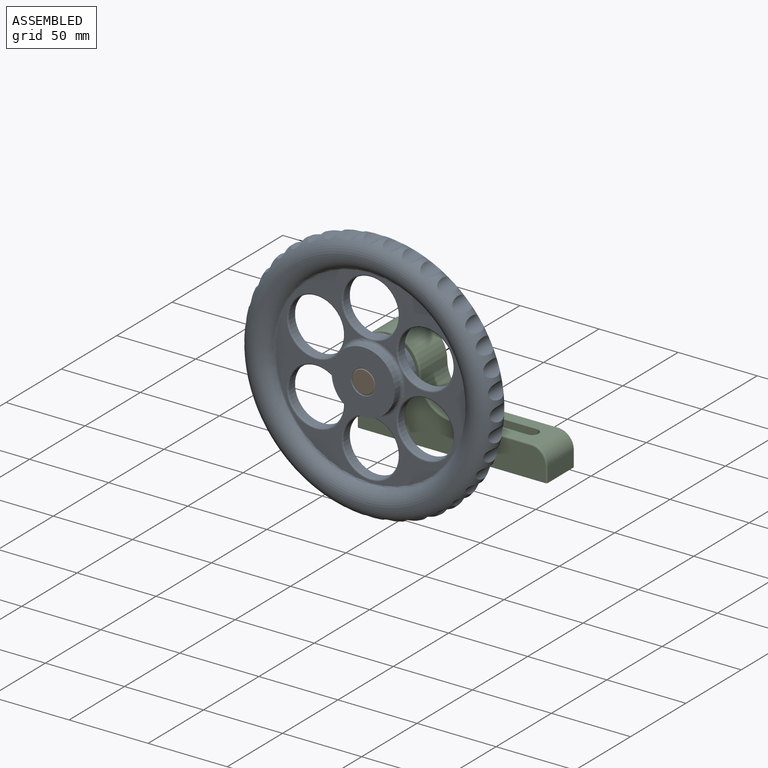
[diagram: assembled view]
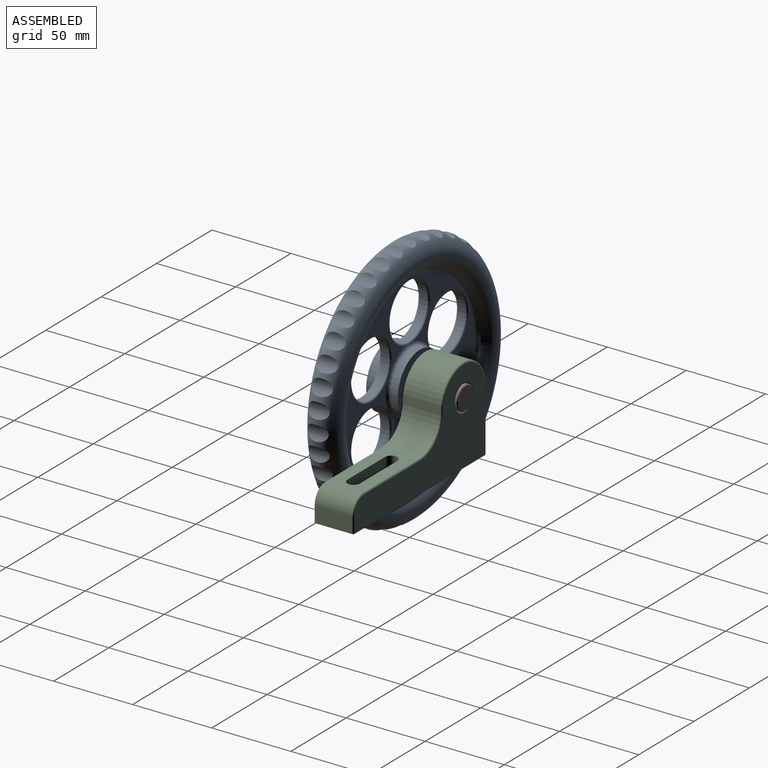
[diagram: assembled view, second angle]
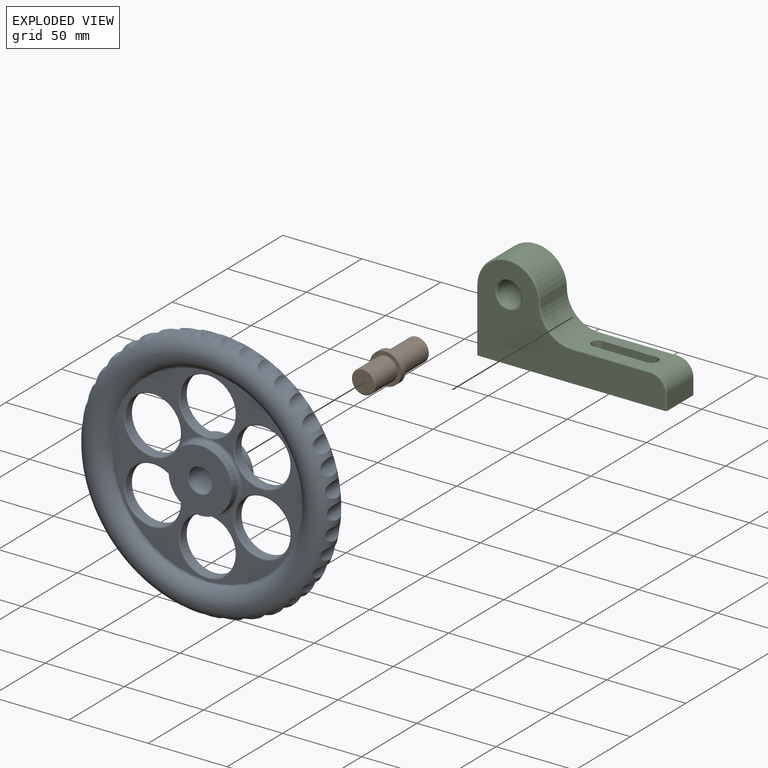
[diagram: exploded view]
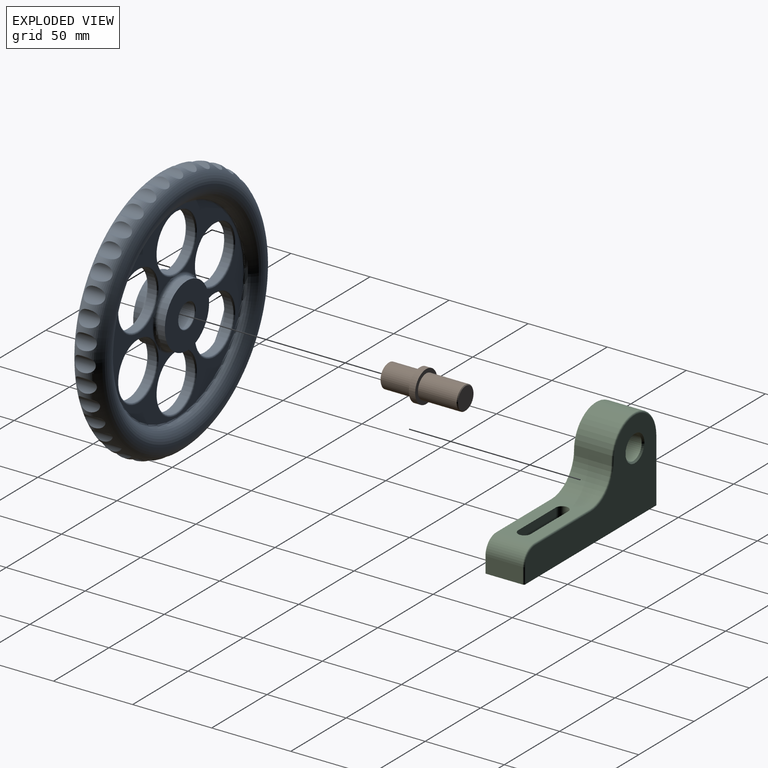
[diagram: exploded view, second angle]
ASSEMBLY  parts=3 mates=2
PART A: 84 faces, bbox 173.2x20x173.2 mm
  f0: plane 119.93x119.93mm, normal (0,-1,0), area 3336.5mm2, adj f14,f28,f30,f32,f34,f36,f38,f41
  f1: cylinder r=20mm len=40mm, axis (0,-1,0), area 565.5mm2, adj f2,f14
  f2: plane 40x40mm, normal (0,-1,0), area 1055.6mm2, adj f1,f42
  f3: cylinder r=7.5mm len=19mm, axis (0,-1,0), area 895.4mm2, adj f42,f43
  f4: plane 40x40mm, normal (0,1,0), area 1055.6mm2, adj f5,f43
  f5: cylinder r=20mm len=40mm, axis (0,-1,0), area 565.5mm2, adj f4,f15
  f6: plane 119.93x119.93mm, normal (0,1,0), area 3336.5mm2, adj f15,f16,f18,f20,f22,f24,f26,f40
  f7: torus R=70mm, axis (0,-1,0), area 20034.7mm2, adj f40,f41,f44,f45,f46,f47,f48,f49
  f8: cylinder r=17.5mm len=35mm, axis (0,-1,0), area 549.8mm2, adj f26,f27,f38,f39
  f9: cylinder r=17.5mm len=35mm, axis (0,-1,0), area 549.8mm2, adj f24,f25,f28,f29
  f10: cylinder r=17.5mm len=35mm, axis (0,-1,0), area 549.8mm2, adj f22,f23,f36,f37
  f11: cylinder r=17.5mm len=35mm, axis (0,-1,0), area 549.8mm2, adj f20,f21,f34,f35
  f12: cylinder r=17.5mm len=35mm, axis (0,-1,0), area 549.8mm2, adj f18,f19,f30,f31
  f13: cylinder r=17.5mm len=35mm, axis (0,-1,0), area 549.8mm2, adj f16,f17,f32,f33
  f14: torus R=22mm, axis (0,1,0), area 400.6mm2, adj f0,f1,f29,f31,f33,f35,f37,f39
  f15: torus R=22mm, axis (0,-1,0), area 400.6mm2, adj f5,f6,f17,f19,f21,f23,f25,f27
  f16: torus R=18.5mm, axis (0,-1,0), area 166.7mm2, adj f6,f13,f17
  f17: bspline ~7.62x1.28mm, area 8.9mm2, adj f13,f15,f16
  f18: torus R=18.5mm, axis (0,-1,0), area 166.7mm2, adj f6,f12,f19
  f19: bspline ~6.31x4.24mm, area 8.9mm2, adj f12,f15,f18
  f20: torus R=18.5mm, axis (0,-1,0), area 166.7mm2, adj f6,f11,f21
  f21: bspline ~6.92x4.7mm, area 8.9mm2, adj f11,f15,f20
  f22: torus R=18.5mm, axis (0,-1,0), area 166.7mm2, adj f6,f10,f23
  f23: bspline ~6.31x4.24mm, area 8.9mm2, adj f10,f15,f22
  f24: torus R=18.5mm, axis (0,-1,0), area 166.7mm2, adj f6,f9,f25
  f25: bspline ~6.92x4.7mm, area 8.9mm2, adj f9,f15,f24
  f26: torus R=18.5mm, axis (0,-1,0), area 166.7mm2, adj f6,f8,f27
  f27: bspline ~7.62x1.28mm, area 8.9mm2, adj f8,f15,f26
  f28: torus R=18.5mm, axis (0,1,0), area 166.7mm2, adj f0,f9,f29
  f29: bspline ~6.92x4.7mm, area 8.9mm2, adj f9,f14,f28
  f30: torus R=18.5mm, axis (0,1,0), area 166.7mm2, adj f0,f12,f31
  f31: bspline ~6.31x4.24mm, area 8.9mm2, adj f12,f14,f30
  f32: torus R=18.5mm, axis (0,1,0), area 166.7mm2, adj f0,f13,f33
  f33: bspline ~7.62x1.28mm, area 8.9mm2, adj f13,f14,f32
  f34: torus R=18.5mm, axis (0,1,0), area 166.7mm2, adj f0,f11,f35
  f35: bspline ~6.92x4.7mm, area 8.9mm2, adj f11,f14,f34
  f36: torus R=18.5mm, axis (0,1,0), area 166.7mm2, adj f0,f10,f37
  f37: bspline ~6.31x4.24mm, area 8.9mm2, adj f10,f14,f36
  f38: torus R=18.5mm, axis (0,1,0), area 166.7mm2, adj f0,f8,f39
  f39: bspline ~7.62x1.28mm, area 8.9mm2, adj f8,f14,f38
  f40: torus R=59.96mm, axis (0,1,0), area 436.7mm2, adj f6,f7
  f41: torus R=59.96mm, axis (0,-1,0), area 436.7mm2, adj f0,f7
  f42: torus R=8mm, axis (0,1,0), area 37.9mm2, adj f2,f3
  f43: torus R=8mm, axis (0,-1,0), area 37.9mm2, adj f3,f4
  f44: cylinder r=6mm len=13.23mm, axis (0,-1,0), area 115.3mm2, adj f7
  f45: cylinder r=6mm len=13.23mm, axis (0,-1,0), area 115.3mm2, adj f7
  f46: cylinder r=6mm len=13.23mm, axis (0,-1,0), area 115.3mm2, adj f7
  f47: cylinder r=6mm len=13.23mm, axis (0,-1,0), area 115.3mm2, adj f7
  f48: cylinder r=6mm len=13.23mm, axis (0,-1,0), area 115.3mm2, adj f7
  f49: cylinder r=6mm len=13.23mm, axis (0,-1,0), area 115.3mm2, adj f7
  f50: cylinder r=6mm len=13.23mm, axis (0,-1,0), area 115.3mm2, adj f7
  f51: cylinder r=6mm len=13.23mm, axis (0,-1,0), area 115.3mm2, adj f7
  f52: cylinder r=6mm len=13.23mm, axis (0,-1,0), area 115.3mm2, adj f7
  f53: cylinder r=6mm len=13.23mm, axis (0,-1,0), area 115.3mm2, adj f7
  f54: cylinder r=6mm len=13.23mm, axis (0,-1,0), area 115.3mm2, adj f7
  f55: cylinder r=6mm len=13.23mm, axis (0,-1,0), area 115.3mm2, adj f7
  f56: cylinder r=6mm len=13.23mm, axis (0,-1,0), area 115.3mm2, adj f7
  f57: cylinder r=6mm len=13.23mm, axis (0,-1,0), area 115.3mm2, adj f7
  f58: cylinder r=6mm len=13.23mm, axis (0,-1,0), area 115.3mm2, adj f7
  f59: cylinder r=6mm len=13.23mm, axis (0,-1,0), area 115.3mm2, adj f7
  f60: cylinder r=6mm len=13.23mm, axis (0,-1,0), area 115.3mm2, adj f7
  f61: cylinder r=6mm len=13.23mm, axis (0,-1,0), area 115.3mm2, adj f7
  f62: cylinder r=6mm len=13.23mm, axis (0,-1,0), area 115.3mm2, adj f7
  f63: cylinder r=6mm len=13.23mm, axis (0,-1,0), area 115.3mm2, adj f7
  f64: cylinder r=6mm len=13.23mm, axis (0,-1,0), area 115.3mm2, adj f7
  f65: cylinder r=6mm len=13.23mm, axis (0,-1,0), area 115.3mm2, adj f7
  f66: cylinder r=6mm len=13.23mm, axis (0,-1,0), area 115.3mm2, adj f7
  f67: cylinder r=6mm len=13.23mm, axis (0,-1,0), area 115.3mm2, adj f7
  f68: cylinder r=6mm len=13.23mm, axis (0,-1,0), area 115.3mm2, adj f7
  f69: cylinder r=6mm len=13.23mm, axis (0,-1,0), area 115.3mm2, adj f7
  f70: cylinder r=6mm len=13.23mm, axis (0,-1,0), area 115.3mm2, adj f7
  f71: cylinder r=6mm len=13.23mm, axis (0,-1,0), area 115.3mm2, adj f7
  f72: cylinder r=6mm len=13.23mm, axis (0,-1,0), area 115.3mm2, adj f7
  f73: cylinder r=6mm len=13.23mm, axis (0,-1,0), area 115.3mm2, adj f7
  f74: cylinder r=6mm len=13.23mm, axis (0,-1,0), area 115.3mm2, adj f7
  f75: cylinder r=6mm len=13.23mm, axis (0,-1,0), area 115.3mm2, adj f7
  f76: cylinder r=6mm len=13.23mm, axis (0,-1,0), area 115.3mm2, adj f7
  f77: cylinder r=6mm len=13.23mm, axis (0,-1,0), area 115.3mm2, adj f7
  f78: cylinder r=6mm len=13.23mm, axis (0,-1,0), area 115.3mm2, adj f7
  f79: cylinder r=6mm len=13.23mm, axis (0,-1,0), area 115.3mm2, adj f7
  f80: cylinder r=6mm len=13.23mm, axis (0,-1,0), area 115.3mm2, adj f7
  f81: cylinder r=6mm len=13.23mm, axis (0,-1,0), area 115.3mm2, adj f7
  f82: cylinder r=6mm len=13.23mm, axis (0,-1,0), area 115.3mm2, adj f7
  f83: cylinder r=6mm len=13.23mm, axis (0,-1,0), area 115.3mm2, adj f7
PART B: 9 faces, bbox 20x49x20 mm
  f0: plane 14x14mm, normal (0,-1,0), area 153.9mm2, adj f8
  f1: plane 14x14mm, normal (0,1,0), area 153.9mm2, adj f7
  f2: cylinder r=7.5mm len=24.5mm, axis (0,-1,0), area 1154.5mm2, adj f3,f7
  f3: plane 20x20mm, normal (0,1,0), area 137.4mm2, adj f2,f4
  f4: cylinder r=10mm len=20mm, axis (0,-1,0), area 251.3mm2, adj f3,f5
  f5: plane 20x20mm, normal (0,-1,0), area 137.4mm2, adj f4,f6
  f6: cylinder r=7.5mm len=19.5mm, axis (0,-1,0), area 918.9mm2, adj f5,f8
  f7: cone r=7.5mm half-angle=45deg, axis (0,-1,0), area 32.2mm2, adj f1,f2
  f8: cone r=7mm half-angle=45deg, axis (0,1,0), area 32.2mm2, adj f0,f6
PART C: 42 faces, bbox 122.5x25x61.6 mm
  f0: plane 120x25mm, normal (0,0,-1), area 563.1mm2, adj f3,f7,f8,f9,f15,f20,f21,f26
  f1: plane 46x12mm, normal (0,0,-1), area 198.8mm2, adj f11,f12,f13,f14,f36,f37,f38,f39
  f2: plane 50x23mm, normal (0,0,1), area 827.7mm2, adj f4,f5,f11,f12,f13,f14,f18,f24
  f3: plane 23x10mm, normal (1,0,0), area 230mm2, adj f0,f4,f20,f26
  f4: cylinder r=10mm len=23mm, axis (0,1,0), area 361.3mm2, adj f2,f3,f19,f25
  f5: cylinder r=20mm len=23mm, axis (0,1,0), area 722.6mm2, adj f2,f6,f17,f23
  f6: cylinder r=20mm len=40mm, axis (0,1,0), area 1445.1mm2, adj f5,f7,f16,f22
  f7: plane 40x23mm, normal (-1,0,0), area 920mm2, adj f0,f6,f15,f21
  f8: plane 118x59mm, normal (0,-1,0), area 3457.3mm2, adj f0,f21,f22,f23,f24,f25,f26,f41
  f9: plane 118x59mm, normal (0,1,0), area 3457.3mm2, adj f0,f15,f16,f17,f18,f19,f20,f40
  f10: cylinder r=7.5mm len=23mm, axis (0,-1,0), area 1083.8mm2, adj f40,f41
  f11: plane 34x20mm, normal (0,-1,0), area 680mm2, adj f1,f2,f12,f14
  f12: cylinder r=4mm len=20mm, axis (0,0,1), area 251.3mm2, adj f1,f2,f11,f13
  f13: plane 34x20mm, normal (0,1,0), area 680mm2, adj f1,f2,f12,f14
  f14: cylinder r=4mm len=20mm, axis (0,0,1), area 251.3mm2, adj f1,f2,f11,f13
  f15: cylinder r=1mm len=40mm, axis (0,0,-1), area 62.8mm2, adj f0,f7,f9,f16
  f16: torus R=19mm, axis (0,-1,0), area 96.9mm2, adj f6,f9,f15,f17
  f17: torus R=21mm, axis (0,-1,0), area 50.2mm2, adj f5,f9,f16,f18
  f18: cylinder r=1mm len=50mm, axis (-1,0,0), area 78.5mm2, adj f2,f9,f17,f19
  f19: torus R=9mm, axis (0,-1,0), area 23.8mm2, adj f4,f9,f18,f20
  f20: cylinder r=1mm len=10mm, axis (0,0,1), area 15.7mm2, adj f0,f3,f9,f19
  f21: cylinder r=1mm len=40mm, axis (0,0,1), area 62.8mm2, adj f0,f7,f8,f22
  f22: torus R=19mm, axis (0,-1,0), area 96.9mm2, adj f6,f8,f21,f23
  f23: torus R=21mm, axis (0,-1,0), area 50.2mm2, adj f5,f8,f22,f24
  f24: cylinder r=1mm len=50mm, axis (1,0,0), area 78.5mm2, adj f2,f8,f23,f25
  f25: torus R=9mm, axis (0,-1,0), area 23.8mm2, adj f4,f8,f24,f26
  f26: cylinder r=1mm len=10mm, axis (0,0,-1), area 15.7mm2, adj f0,f3,f8,f25
  f27: plane 50x21mm, normal (0,0,-1), area 528.9mm2, adj f29,f30,f33,f34,f36,f37,f38,f39
  f28: plane 21x10mm, normal (-1,0,0), area 210mm2, adj f0,f29,f33,f34
  f29: cylinder r=8mm len=21mm, axis (0,1,0), area 263.9mm2, adj f27,f28,f33,f34
  f30: cylinder r=22mm len=22mm, axis (0,1,0), area 725.7mm2, adj f27,f31,f33,f34
  f31: cylinder r=18mm len=36mm, axis (0,1,0), area 1187.5mm2, adj f30,f32,f33,f34
  f32: plane 40x21mm, normal (1,0,0), area 840mm2, adj f0,f31,f33,f34
  f33: plane 116x58mm, normal (0,1,0), area 3195.5mm2, adj f0,f27,f28,f29,f30,f31,f32,f35
  f34: plane 116x58mm, normal (0,-1,0), area 3195.5mm2, adj f0,f27,f28,f29,f30,f31,f32,f35
  f35: cylinder r=9.5mm len=21mm, axis (0,-1,0), area 1253.5mm2, adj f33,f34
  f36: plane 34x18mm, normal (0,1,0), area 612mm2, adj f1,f27,f37,f39
  f37: cylinder r=6mm len=18mm, axis (0,0,1), area 339.3mm2, adj f1,f27,f36,f38
  f38: plane 34x18mm, normal (0,-1,0), area 612mm2, adj f1,f27,f37,f39
  f39: cylinder r=6mm len=18mm, axis (0,0,1), area 339.3mm2, adj f1,f27,f36,f38
  f40: cone r=8.5mm half-angle=45deg, axis (0,1,0), area 71.1mm2, adj f9,f10
  f41: cone r=7.5mm half-angle=45deg, axis (0,-1,0), area 71.1mm2, adj f8,f10
PLACE A t=(-109.84,-60.25,18.82)mm
PLACE B t=(-109.84,-45.96,18.82)mm
PLACE C t=(-27.96,-22.25,-21.18)mm
MATE revolute A.f1 <-> B.f2  axis (0,1,0) through (-109.84,-50.25,18.82)mm
MATE fastened C.f6 <-> B.f2  axis (0,-1,0) through (-109.84,-46.25,18.82)mm
